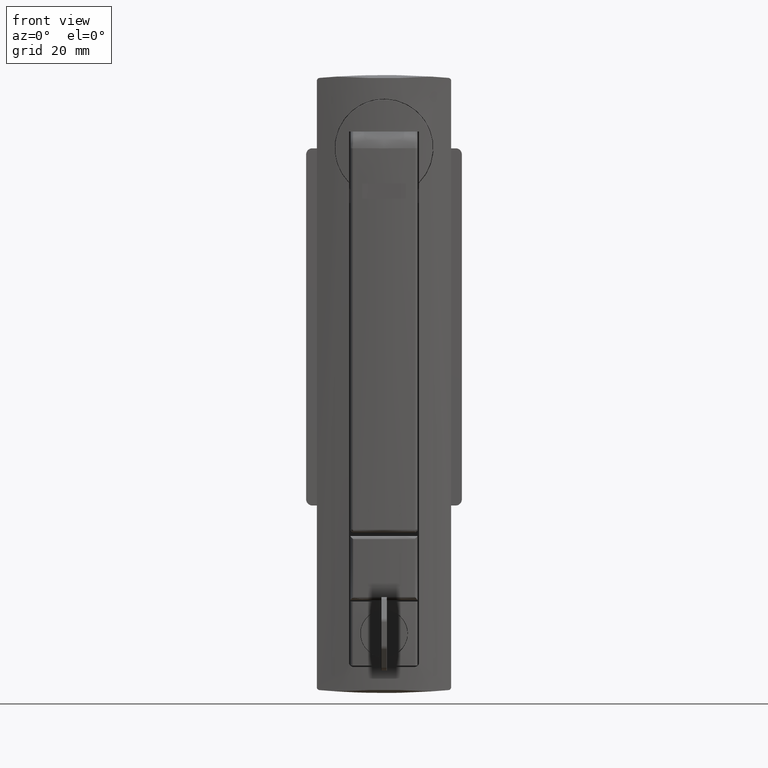
[diagram: clean part render]
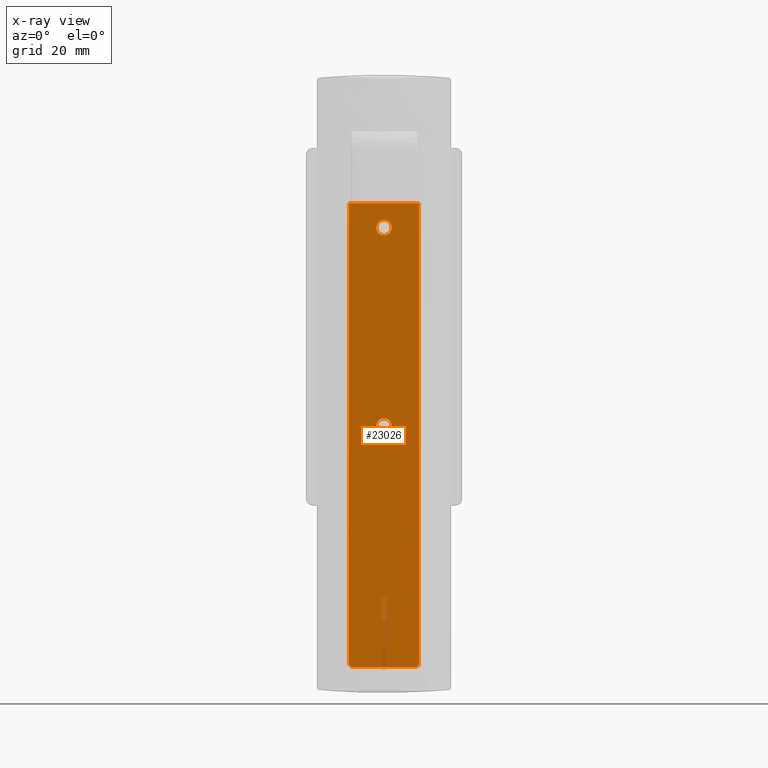
[diagram: x-ray — body ghosted, one internal face saturated and labeled with its STEP entity id]
A machine part, front view, then the same camera in x-ray: the body is ghosted and one INTERNAL B-rep face — a face not visible from any outside direction — is saturated and labeled: STEP entity #23026.
In plain terms, the highlighted face is a freeform B-spline surface patch.
Its self-contained STEP definition (entity closure, byte-faithful):
#15535=CARTESIAN_POINT('',(13.699999999999999,0.0,-23.500000000000000));
#15536=VERTEX_POINT('',#15535);
#15537=CARTESIAN_POINT('',(13.699999999999999,-2.492293334216144,-25.803852259197889));
#15538=VERTEX_POINT('',#15537);
#15539=CARTESIAN_POINT('',(13.699999999999999,0.0,-23.500000000000000));
#15540=CARTESIAN_POINT('',(13.700000000000003,-2.310976226387730,-23.500000000000004));
#15541=CARTESIAN_POINT('',(13.699999999999998,-2.492293334216144,-25.803852259197885));
#15549=(BOUNDED_CURVE()B_SPLINE_CURVE(2,(#15539,#15540,#15541),.UNSPECIFIED.,.F.,.U.)B_SPLINE_CURVE_WITH_KNOTS((3,3),(0.0,0.236331300428829),.UNSPECIFIED.)CURVE()GEOMETRIC_REPRESENTATION_ITEM()RATIONAL_B_SPLINE_CURVE((1.0,0.723120658844125,0.969723355746213))REPRESENTATION_ITEM(''));
#15550=EDGE_CURVE('',#15536,#15538,#15549,.T.);
#15552=CARTESIAN_POINT('',(13.699999999999999,2.492293334216145,-26.196147740802111));
#15553=VERTEX_POINT('',#15552);
#15554=CARTESIAN_POINT('',(13.700000000000001,2.492293334216145,-26.196147740802108));
#15555=CARTESIAN_POINT('',(13.700000000000008,2.500000000000000,-26.098225269008552));
#15556=CARTESIAN_POINT('',(13.699999999999999,2.500000000000000,-26.0));
#15557=CARTESIAN_POINT('',(13.700000000000003,2.500000000000000,-23.500000000000004));
#15558=CARTESIAN_POINT('',(13.699999999999999,0.0,-23.500000000000000));
#15566=(BOUNDED_CURVE()B_SPLINE_CURVE(2,(#15554,#15555,#15556,#15557,#15558),.UNSPECIFIED.,.F.,.U.)B_SPLINE_CURVE_WITH_KNOTS((3,2,3),(0.736331300428829,0.750000000000000,1.0),.UNSPECIFIED.)CURVE()GEOMETRIC_REPRESENTATION_ITEM()RATIONAL_B_SPLINE_CURVE((0.969723355746213,0.983986122342423,1.0,0.707106781186548,1.0))REPRESENTATION_ITEM(''));
#15567=EDGE_CURVE('',#15553,#15536,#15566,.T.);
#15634=CARTESIAN_POINT('',(13.699999999999999,0.0,-28.500000000000000));
#15635=VERTEX_POINT('',#15634);
#15636=CARTESIAN_POINT('',(13.699999999999998,-2.492293334216144,-25.803852259197885));
#15637=CARTESIAN_POINT('',(13.700000000000006,-2.500000000000000,-25.901774730991448));
#15638=CARTESIAN_POINT('',(13.699999999999999,-2.500000000000000,-26.0));
#15639=CARTESIAN_POINT('',(13.700000000000003,-2.500000000000000,-28.499999999999993));
#15640=CARTESIAN_POINT('',(13.699999999999999,0.0,-28.500000000000000));
#15648=(BOUNDED_CURVE()B_SPLINE_CURVE(2,(#15636,#15637,#15638,#15639,#15640),.UNSPECIFIED.,.F.,.U.)B_SPLINE_CURVE_WITH_KNOTS((3,2,3),(0.236331300428829,0.250000000000000,0.500000000000000),.UNSPECIFIED.)CURVE()GEOMETRIC_REPRESENTATION_ITEM()RATIONAL_B_SPLINE_CURVE((0.969723355746213,0.983986122342423,1.0,0.707106781186548,1.0))REPRESENTATION_ITEM(''));
#15649=EDGE_CURVE('',#15538,#15635,#15648,.T.);
#15683=CARTESIAN_POINT('',(13.699999999999999,0.0,-28.500000000000000));
#15684=CARTESIAN_POINT('',(13.700000000000001,2.310976226387730,-28.499999999999993));
#15685=CARTESIAN_POINT('',(13.700000000000001,2.492293334216145,-26.196147740802108));
#15693=(BOUNDED_CURVE()B_SPLINE_CURVE(2,(#15683,#15684,#15685),.UNSPECIFIED.,.F.,.U.)B_SPLINE_CURVE_WITH_KNOTS((3,3),(0.500000000000000,0.736331300428829),.UNSPECIFIED.)CURVE()GEOMETRIC_REPRESENTATION_ITEM()RATIONAL_B_SPLINE_CURVE((1.0,0.723120658844125,0.969723355746213))REPRESENTATION_ITEM(''));
#15694=EDGE_CURVE('',#15635,#15553,#15693,.T.);
#15717=CARTESIAN_POINT('',(13.699999999999999,0.0,-88.499996999999993));
#15718=VERTEX_POINT('',#15717);
#15719=CARTESIAN_POINT('',(13.699999999999999,-2.492293334216144,-90.803849259197875));
#15720=VERTEX_POINT('',#15719);
#15721=CARTESIAN_POINT('',(13.699999999999999,0.0,-88.499996999999993));
#15722=CARTESIAN_POINT('',(13.700000000000001,-2.310976226387722,-88.499996999999993));
#15723=CARTESIAN_POINT('',(13.699999999999998,-2.492293334216143,-90.803849259197875));
#15731=(BOUNDED_CURVE()B_SPLINE_CURVE(2,(#15721,#15722,#15723),.UNSPECIFIED.,.F.,.U.)B_SPLINE_CURVE_WITH_KNOTS((3,3),(0.0,0.236331300428829),.UNSPECIFIED.)CURVE()GEOMETRIC_REPRESENTATION_ITEM()RATIONAL_B_SPLINE_CURVE((1.0,0.723120658844125,0.969723355746212))REPRESENTATION_ITEM(''));
#15732=EDGE_CURVE('',#15718,#15720,#15731,.T.);
#15734=CARTESIAN_POINT('',(13.699999999999999,2.492293334216145,-91.196144740802097));
#15735=VERTEX_POINT('',#15734);
#15736=CARTESIAN_POINT('',(13.700000000000003,2.492293334216144,-91.196144740802097));
#15737=CARTESIAN_POINT('',(13.700000000000006,2.500000000000000,-91.098222269008545));
#15738=CARTESIAN_POINT('',(13.699999999999999,2.500000000000000,-90.999996999999993));
#15739=CARTESIAN_POINT('',(13.700000000000003,2.500000000000000,-88.499996999999993));
#15740=CARTESIAN_POINT('',(13.699999999999999,0.0,-88.499996999999993));
#15748=(BOUNDED_CURVE()B_SPLINE_CURVE(2,(#15736,#15737,#15738,#15739,#15740),.UNSPECIFIED.,.F.,.U.)B_SPLINE_CURVE_WITH_KNOTS((3,2,3),(0.736331300428830,0.750000000000000,1.0),.UNSPECIFIED.)CURVE()GEOMETRIC_REPRESENTATION_ITEM()RATIONAL_B_SPLINE_CURVE((0.969723355746214,0.983986122342424,1.0,0.707106781186548,1.0))REPRESENTATION_ITEM(''));
#15749=EDGE_CURVE('',#15735,#15718,#15748,.T.);
#15816=CARTESIAN_POINT('',(13.699999999999999,0.0,-93.499997000000008));
#15817=VERTEX_POINT('',#15816);
#15818=CARTESIAN_POINT('',(13.699999999999998,-2.492293334216143,-90.803849259197875));
#15819=CARTESIAN_POINT('',(13.700000000000006,-2.500000000000000,-90.901771730991442));
#15820=CARTESIAN_POINT('',(13.699999999999999,-2.500000000000000,-90.999996999999993));
#15821=CARTESIAN_POINT('',(13.700000000000003,-2.500000000000000,-93.499997000000022));
#15822=CARTESIAN_POINT('',(13.699999999999999,0.0,-93.499997000000008));
#15830=(BOUNDED_CURVE()B_SPLINE_CURVE(2,(#15818,#15819,#15820,#15821,#15822),.UNSPECIFIED.,.F.,.U.)B_SPLINE_CURVE_WITH_KNOTS((3,2,3),(0.236331300428829,0.250000000000000,0.500000000000000),.UNSPECIFIED.)CURVE()GEOMETRIC_REPRESENTATION_ITEM()RATIONAL_B_SPLINE_CURVE((0.969723355746212,0.983986122342422,1.0,0.707106781186548,1.0))REPRESENTATION_ITEM(''));
#15831=EDGE_CURVE('',#15720,#15817,#15830,.T.);
#15865=CARTESIAN_POINT('',(13.699999999999999,0.0,-93.499997000000008));
#15866=CARTESIAN_POINT('',(13.700000000000001,2.310976226387730,-93.499997000000022));
#15867=CARTESIAN_POINT('',(13.700000000000001,2.492293334216145,-91.196144740802097));
#15875=(BOUNDED_CURVE()B_SPLINE_CURVE(2,(#15865,#15866,#15867),.UNSPECIFIED.,.F.,.U.)B_SPLINE_CURVE_WITH_KNOTS((3,3),(0.500000000000000,0.736331300428829),.UNSPECIFIED.)CURVE()GEOMETRIC_REPRESENTATION_ITEM()RATIONAL_B_SPLINE_CURVE((1.0,0.723120658844125,0.969723355746213))REPRESENTATION_ITEM(''));
#15876=EDGE_CURVE('',#15817,#15735,#15875,.T.);
#21369=CARTESIAN_POINT('',(13.699999999999999,-11.500000000000000,-18.0));
#21370=VERTEX_POINT('',#21369);
#21383=CARTESIAN_POINT('',(13.699999999999999,11.500000000000000,-18.0));
#21384=VERTEX_POINT('',#21383);
#21390=CARTESIAN_POINT('',(13.699999999999999,-11.500000000000000,-18.0));
#21391=CARTESIAN_POINT('',(13.699999999999999,11.500000000000000,-18.0));
#21392=QUASI_UNIFORM_CURVE('',1,(#21390,#21391),.UNSPECIFIED.,.F.,.U.);
#21393=EDGE_CURVE('',#21370,#21384,#21392,.T.);
#21492=CARTESIAN_POINT('',(13.699999999999999,-11.500000000000000,-168.500000000000000));
#21493=VERTEX_POINT('',#21492);
#21499=CARTESIAN_POINT('',(13.699999999999999,-10.0,-170.0));
#21500=VERTEX_POINT('',#21499);
#21501=CARTESIAN_POINT('',(13.699999999999999,-10.0,-170.0));
#21502=CARTESIAN_POINT('',(13.700000000000003,-11.500000000000000,-170.000000000000030));
#21503=CARTESIAN_POINT('',(13.699999999999999,-11.500000000000000,-168.500000000000000));
#21511=(BOUNDED_CURVE()B_SPLINE_CURVE(2,(#21501,#21502,#21503),.UNSPECIFIED.,.F.,.U.)CURVE()GEOMETRIC_REPRESENTATION_ITEM()QUASI_UNIFORM_CURVE()RATIONAL_B_SPLINE_CURVE((1.0,0.707106781186548,1.0))REPRESENTATION_ITEM(''));
#21512=EDGE_CURVE('',#21500,#21493,#21511,.T.);
#21559=CARTESIAN_POINT('',(13.699999999999999,10.0,-170.0));
#21560=VERTEX_POINT('',#21559);
#21561=CARTESIAN_POINT('',(13.699999999999999,10.0,-170.0));
#21562=CARTESIAN_POINT('',(13.699999999999999,-10.0,-170.0));
#21563=QUASI_UNIFORM_CURVE('',1,(#21561,#21562),.UNSPECIFIED.,.F.,.U.);
#21564=EDGE_CURVE('',#21560,#21500,#21563,.T.);
#21604=CARTESIAN_POINT('',(13.699999999999999,11.500000000000000,-168.500000000000000));
#21605=VERTEX_POINT('',#21604);
#21606=CARTESIAN_POINT('',(13.699999999999999,11.500000000000000,-168.500000000000000));
#21607=CARTESIAN_POINT('',(13.700000000000003,11.500000000000000,-170.000000000000030));
#21608=CARTESIAN_POINT('',(13.699999999999999,10.0,-170.0));
#21616=(BOUNDED_CURVE()B_SPLINE_CURVE(2,(#21606,#21607,#21608),.UNSPECIFIED.,.F.,.U.)CURVE()GEOMETRIC_REPRESENTATION_ITEM()QUASI_UNIFORM_CURVE()RATIONAL_B_SPLINE_CURVE((1.0,0.707106781186548,1.0))REPRESENTATION_ITEM(''));
#21617=EDGE_CURVE('',#21605,#21560,#21616,.T.);
#21663=CARTESIAN_POINT('',(13.699999999999999,11.500000000000000,-18.0));
#21664=CARTESIAN_POINT('',(13.699999999999999,11.500000000000000,-168.500000000000000));
#21665=QUASI_UNIFORM_CURVE('',1,(#21663,#21664),.UNSPECIFIED.,.F.,.U.);
#21666=EDGE_CURVE('',#21384,#21605,#21665,.T.);
#21900=CARTESIAN_POINT('',(13.699999999999999,-11.500000000000000,-168.500000000000000));
#21901=CARTESIAN_POINT('',(13.699999999999999,-11.500000000000000,-18.0));
#21902=QUASI_UNIFORM_CURVE('',1,(#21900,#21901),.UNSPECIFIED.,.F.,.U.);
#21903=EDGE_CURVE('',#21493,#21370,#21902,.T.);
#23001=CARTESIAN_POINT('',(13.699999999999999,12.648849955421539,-10.407600294605491));
#23002=CARTESIAN_POINT('',(13.699999999999999,-12.648850572329611,-10.407600294605491));
#23003=CARTESIAN_POINT('',(13.699999999999999,12.648849955421539,-177.592403782352190));
#23004=CARTESIAN_POINT('',(13.699999999999999,-12.648850572329611,-177.592403782352190));
#23005=B_SPLINE_SURFACE_WITH_KNOTS('',1,1,((#23001,#23003),(#23002,#23004)),.UNSPECIFIED.,.F.,.F.,.U.,(2,2),(2,2),(0.0,25.297700527751150),(0.0,167.184803487746710),.UNSPECIFIED.);
#23006=ORIENTED_EDGE('',*,*,#21393,.T.);
#23007=ORIENTED_EDGE('',*,*,#21666,.T.);
#23008=ORIENTED_EDGE('',*,*,#21617,.T.);
#23009=ORIENTED_EDGE('',*,*,#21564,.T.);
#23010=ORIENTED_EDGE('',*,*,#21512,.T.);
#23011=ORIENTED_EDGE('',*,*,#21903,.T.);
#23012=EDGE_LOOP('',(#23006,#23007,#23008,#23009,#23010,#23011));
#23013=FACE_OUTER_BOUND('',#23012,.T.);
#23014=ORIENTED_EDGE('',*,*,#15876,.T.);
#23015=ORIENTED_EDGE('',*,*,#15749,.T.);
#23016=ORIENTED_EDGE('',*,*,#15732,.T.);
#23017=ORIENTED_EDGE('',*,*,#15831,.T.);
#23018=EDGE_LOOP('',(#23014,#23015,#23016,#23017));
#23019=FACE_BOUND('',#23018,.T.);
#23020=ORIENTED_EDGE('',*,*,#15694,.T.);
#23021=ORIENTED_EDGE('',*,*,#15567,.T.);
#23022=ORIENTED_EDGE('',*,*,#15550,.T.);
#23023=ORIENTED_EDGE('',*,*,#15649,.T.);
#23024=EDGE_LOOP('',(#23020,#23021,#23022,#23023));
#23025=FACE_BOUND('',#23024,.T.);
#23026=ADVANCED_FACE('',(#23013,#23019,#23025),#23005,.F.);